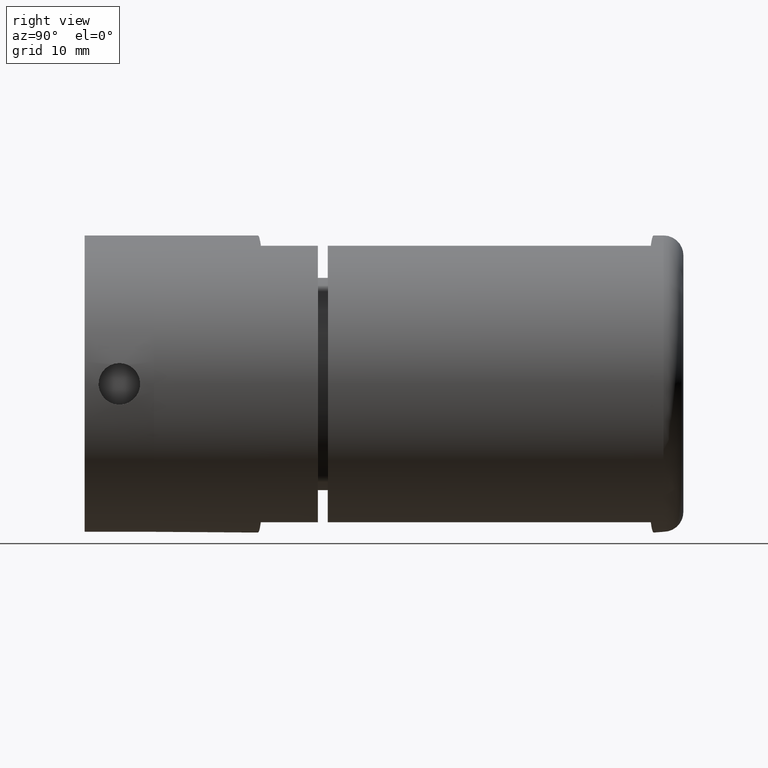
[diagram: clean part render]
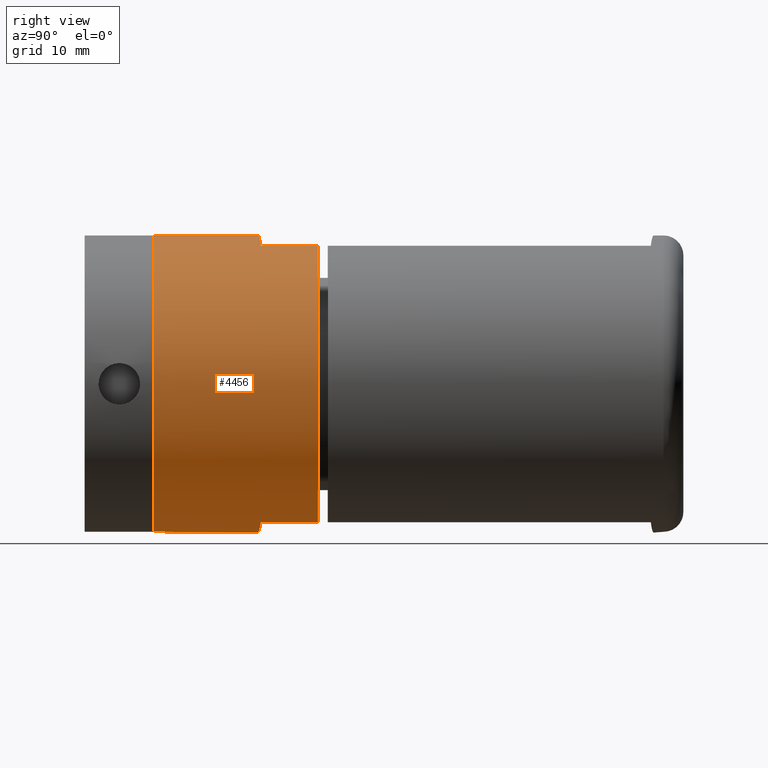
[diagram: same view with one face highlighted and labeled with its STEP entity id]
A machine part, right view. The second image highlights one B-rep face of the part: STEP entity #4456.
In plain terms, the highlighted cylindrical surface (bore or boss wall) has radius 15 mm, axis along (0, 1, -0).
Its self-contained STEP definition (entity closure, byte-faithful):
#646 = CARTESIAN_POINT ( 'NONE',  ( 5.500000000000000900, 16.55000000000000100, 13.95528573695286100 ) ) ;
#855 = DIRECTION ( 'NONE',  ( 0.0000000000000000000, 1.000000000000000000, 0.0000000000000000000 ) ) ;
#1032 = VERTEX_POINT ( 'NONE', #16412 ) ;
#1037 = CARTESIAN_POINT ( 'NONE',  ( -5.500000000000000000, 0.0000000000000000000, -13.95528573695286100 ) ) ;
#1631 = CARTESIAN_POINT ( 'NONE',  ( -5.500000000000000000, 0.0000000000000000000, 13.95528573695286100 ) ) ;
#1642 = VECTOR ( 'NONE', #3507, 1000.000000000000000 ) ;
#1833 = CARTESIAN_POINT ( 'NONE',  ( 5.500000000000000900, 5.761757213943252700, -13.95528573695286100 ) ) ;
#1893 = ORIENTED_EDGE ( 'NONE', *, *, #13645, .T. ) ;
#2259 = ORIENTED_EDGE ( 'NONE', *, *, #7790, .T. ) ;
#2635 = AXIS2_PLACEMENT_3D ( 'NONE', #5276, #5396, #10754 ) ;
#2788 = CARTESIAN_POINT ( 'NONE',  ( 3.743284001891575000, 5.853822798235113600, 14.64763544384650400 ) ) ;
#2898 = CARTESIAN_POINT ( 'NONE',  ( -5.500000000000000900, 5.761757213943252700, -13.95528573695286700 ) ) ;
#2977 = DIRECTION ( 'NONE',  ( 0.0000000000000000000, 1.000000000000000000, 0.0000000000000000000 ) ) ;
#3180 = ORIENTED_EDGE ( 'NONE', *, *, #14249, .T. ) ;
#3210 = VERTEX_POINT ( 'NONE', #9183 ) ;
#3251 = CARTESIAN_POINT ( 'NONE',  ( -5.500000000000000900, 5.761757213943252700, 13.95528573695285800 ) ) ;
#3507 = DIRECTION ( 'NONE',  ( -0.0000000000000000000, -1.000000000000000000, -0.0000000000000000000 ) ) ;
#3604 = LINE ( 'NONE', #8059, #13000 ) ;
#3736 = LINE ( 'NONE', #646, #1642 ) ;
#4108 = FACE_OUTER_BOUND ( 'NONE', #16202, .T. ) ;
#4197 = EDGE_CURVE ( 'NONE', #15270, #4609, #6443, .T. ) ;
#4323 = CIRCLE ( 'NONE', #15101, 15.00000000000000000 ) ;
#4330 = CARTESIAN_POINT ( 'NONE',  ( 0.0000000000000000000, 6.050000000000001600, -15.00000000000000000 ) ) ;
#4456 = ADVANCED_FACE ( 'NONE', ( #10578, #4108 ), #14355, .T. ) ;
#4472 = CARTESIAN_POINT ( 'NONE',  ( -5.500000000000000900, 5.761757213943252700, 13.95528573695285800 ) ) ;
#4609 = VERTEX_POINT ( 'NONE', #1037 ) ;
#4839 = DIRECTION ( 'NONE',  ( 0.0000000000000000000, 0.0000000000000000000, -1.000000000000000000 ) ) ;
#5146 = EDGE_CURVE ( 'NONE', #5657, #16928, #14291, .T. ) ;
#5276 = CARTESIAN_POINT ( 'NONE',  ( 0.0000000000000000000, 0.0000000000000000000, 0.0000000000000000000 ) ) ;
#5396 = DIRECTION ( 'NONE',  ( 0.0000000000000000000, 1.000000000000000000, 0.0000000000000000000 ) ) ;
#5657 = VERTEX_POINT ( 'NONE', #8538 ) ;
#5703 = CARTESIAN_POINT ( 'NONE',  ( -1.888226473346291700, 5.951042243748466000, -15.00000000000000000 ) ) ;
#6159 =( BOUNDED_CURVE ( )  B_SPLINE_CURVE ( 3, ( #3251, #11243, #7429, #8761 ),
 .UNSPECIFIED., .F., .F. ) 
 B_SPLINE_CURVE_WITH_KNOTS ( ( 4, 4 ),
 ( 1.195372718813857000, 1.570796326794896600 ),
 .UNSPECIFIED. ) 
 CURVE ( )  GEOMETRIC_REPRESENTATION_ITEM ( )  RATIONAL_B_SPLINE_CURVE ( ( 1.000000000000000000, 0.9882892067347445200, 0.9882892067347445200, 1.000000000000000000 ) ) 
 REPRESENTATION_ITEM ( '' )  );
#6322 = CARTESIAN_POINT ( 'NONE',  ( 0.0000000000000000000, 16.55000000000000100, 15.00000000000000000 ) ) ;
#6351 = ORIENTED_EDGE ( 'NONE', *, *, #10723, .T. ) ;
#6443 = LINE ( 'NONE', #11396, #13113 ) ;
#6641 = ORIENTED_EDGE ( 'NONE', *, *, #5146, .T. ) ;
#7034 = EDGE_CURVE ( 'NONE', #15697, #15697, #12894, .T. ) ;
#7226 = CARTESIAN_POINT ( 'NONE',  ( 5.500000000000000900, 5.761757213943252700, 13.95528573695286100 ) ) ;
#7239 = CARTESIAN_POINT ( 'NONE',  ( 3.743284001891578900, 5.853822798235113600, -14.64763544384650200 ) ) ;
#7331 = ORIENTED_EDGE ( 'NONE', *, *, #7034, .F. ) ;
#7429 = CARTESIAN_POINT ( 'NONE',  ( -1.888226473346296100, 5.951042243748466000, 15.00000000000000000 ) ) ;
#7464 =( BOUNDED_CURVE ( )  B_SPLINE_CURVE ( 3, ( #1833, #7239, #15004, #11011 ),
 .UNSPECIFIED., .F., .F. ) 
 B_SPLINE_CURVE_WITH_KNOTS ( ( 4, 4 ),
 ( 1.195372718813857200, 1.570796326794896600 ),
 .UNSPECIFIED. ) 
 CURVE ( )  GEOMETRIC_REPRESENTATION_ITEM ( )  RATIONAL_B_SPLINE_CURVE ( ( 1.000000000000000000, 0.9882892067347445200, 0.9882892067347445200, 1.000000000000000000 ) ) 
 REPRESENTATION_ITEM ( '' )  );
#7707 = CARTESIAN_POINT ( 'NONE',  ( 0.0000000000000000000, 16.55000000000000100, 0.0000000000000000000 ) ) ;
#7790 = EDGE_CURVE ( 'NONE', #1032, #15270, #16175, .T. ) ;
#7809 = ORIENTED_EDGE ( 'NONE', *, *, #15415, .T. ) ;
#8059 = CARTESIAN_POINT ( 'NONE',  ( -5.500000000000000900, 16.55000000000000100, 13.95528573695286100 ) ) ;
#8538 = CARTESIAN_POINT ( 'NONE',  ( 0.0000000000000000000, 6.050000000000001600, 15.00000000000000000 ) ) ;
#8761 = CARTESIAN_POINT ( 'NONE',  ( 0.0000000000000000000, 6.050000000000001600, 15.00000000000000000 ) ) ;
#8768 = VECTOR ( 'NONE', #15411, 1000.000000000000000 ) ;
#9042 = DIRECTION ( 'NONE',  ( 0.0000000000000000000, 0.0000000000000000000, 1.000000000000000000 ) ) ;
#9183 = CARTESIAN_POINT ( 'NONE',  ( 5.500000000000000000, 0.0000000000000000000, 13.95528573695286100 ) ) ;
#9309 = ORIENTED_EDGE ( 'NONE', *, *, #13571, .T. ) ;
#9378 = CARTESIAN_POINT ( 'NONE',  ( 1.888226473346291700, 5.951042243748466000, 15.00000000000000000 ) ) ;
#9436 = CARTESIAN_POINT ( 'NONE',  ( 0.0000000000000000000, 6.050000000000001600, 15.00000000000000000 ) ) ;
#9888 = AXIS2_PLACEMENT_3D ( 'NONE', #7707, #17033, #9042 ) ;
#10089 = CARTESIAN_POINT ( 'NONE',  ( 0.0000000000000000000, 16.55000000000000100, 0.0000000000000000000 ) ) ;
#10313 = VERTEX_POINT ( 'NONE', #12501 ) ;
#10469 = VERTEX_POINT ( 'NONE', #11488 ) ;
#10578 = FACE_OUTER_BOUND ( 'NONE', #11759, .T. ) ;
#10673 = AXIS2_PLACEMENT_3D ( 'NONE', #10089, #15489, #4839 ) ;
#10723 = EDGE_CURVE ( 'NONE', #12194, #5657, #6159, .T. ) ;
#10754 = DIRECTION ( 'NONE',  ( 0.0000000000000000000, 0.0000000000000000000, 1.000000000000000000 ) ) ;
#10851 = LINE ( 'NONE', #11426, #8768 ) ;
#11011 = CARTESIAN_POINT ( 'NONE',  ( 0.0000000000000000000, 6.050000000000001600, -15.00000000000000000 ) ) ;
#11243 = CARTESIAN_POINT ( 'NONE',  ( -3.743284001891579400, 5.853822798235114500, 14.64763544384650400 ) ) ;
#11336 = DIRECTION ( 'NONE',  ( -0.0000000000000000000, -1.000000000000000000, -0.0000000000000000000 ) ) ;
#11396 = CARTESIAN_POINT ( 'NONE',  ( -5.500000000000000900, 16.55000000000000100, -13.95528573695286100 ) ) ;
#11426 = CARTESIAN_POINT ( 'NONE',  ( 5.500000000000000900, 16.55000000000000100, -13.95528573695286100 ) ) ;
#11488 = CARTESIAN_POINT ( 'NONE',  ( 5.500000000000000900, 5.761757213943252700, -13.95528573695286100 ) ) ;
#11636 = ORIENTED_EDGE ( 'NONE', *, *, #13206, .T. ) ;
#11759 = EDGE_LOOP ( 'NONE', ( #7331 ) ) ;
#12089 = VERTEX_POINT ( 'NONE', #1631 ) ;
#12194 = VERTEX_POINT ( 'NONE', #4472 ) ;
#12501 = CARTESIAN_POINT ( 'NONE',  ( 5.500000000000000000, 0.0000000000000000000, -13.95528573695286100 ) ) ;
#12894 = CIRCLE ( 'NONE', #9888, 15.00000000000000000 ) ;
#13000 = VECTOR ( 'NONE', #2977, 1000.000000000000000 ) ;
#13113 = VECTOR ( 'NONE', #11336, 1000.000000000000000 ) ;
#13206 = EDGE_CURVE ( 'NONE', #16928, #3210, #3736, .T. ) ;
#13521 = CARTESIAN_POINT ( 'NONE',  ( -3.743284001891575000, 5.853822798235113600, -14.64763544384650400 ) ) ;
#13571 = EDGE_CURVE ( 'NONE', #10313, #10469, #10851, .T. ) ;
#13645 = EDGE_CURVE ( 'NONE', #3210, #10313, #14396, .T. ) ;
#14249 = EDGE_CURVE ( 'NONE', #10469, #1032, #7464, .T. ) ;
#14288 = EDGE_CURVE ( 'NONE', #4609, #12089, #4323, .T. ) ;
#14291 =( BOUNDED_CURVE ( )  B_SPLINE_CURVE ( 3, ( #9436, #9378, #2788, #14416 ),
 .UNSPECIFIED., .F., .F. ) 
 B_SPLINE_CURVE_WITH_KNOTS ( ( 4, 4 ),
 ( 4.712388980384689700, 5.087812588365729000 ),
 .UNSPECIFIED. ) 
 CURVE ( )  GEOMETRIC_REPRESENTATION_ITEM ( )  RATIONAL_B_SPLINE_CURVE ( ( 1.000000000000000000, 0.9882892067347445200, 0.9882892067347445200, 1.000000000000000000 ) ) 
 REPRESENTATION_ITEM ( '' )  );
#14355 = CYLINDRICAL_SURFACE ( 'NONE', #10673, 15.00000000000000000 ) ;
#14396 = CIRCLE ( 'NONE', #2635, 15.00000000000000000 ) ;
#14416 = CARTESIAN_POINT ( 'NONE',  ( 5.500000000000000900, 5.761757213943252700, 13.95528573695286100 ) ) ;
#14923 = ORIENTED_EDGE ( 'NONE', *, *, #14288, .T. ) ;
#15004 = CARTESIAN_POINT ( 'NONE',  ( 1.888226473346295200, 5.951042243748466000, -15.00000000000000000 ) ) ;
#15101 = AXIS2_PLACEMENT_3D ( 'NONE', #16785, #855, #15526 ) ;
#15270 = VERTEX_POINT ( 'NONE', #15654 ) ;
#15411 = DIRECTION ( 'NONE',  ( 0.0000000000000000000, 1.000000000000000000, 0.0000000000000000000 ) ) ;
#15415 = EDGE_CURVE ( 'NONE', #12089, #12194, #3604, .T. ) ;
#15489 = DIRECTION ( 'NONE',  ( -0.0000000000000000000, -1.000000000000000000, -0.0000000000000000000 ) ) ;
#15526 = DIRECTION ( 'NONE',  ( 0.0000000000000000000, 0.0000000000000000000, 1.000000000000000000 ) ) ;
#15654 = CARTESIAN_POINT ( 'NONE',  ( -5.500000000000000900, 5.761757213943252700, -13.95528573695286700 ) ) ;
#15697 = VERTEX_POINT ( 'NONE', #6322 ) ;
#16175 =( BOUNDED_CURVE ( )  B_SPLINE_CURVE ( 3, ( #4330, #5703, #13521, #2898 ),
 .UNSPECIFIED., .F., .F. ) 
 B_SPLINE_CURVE_WITH_KNOTS ( ( 4, 4 ),
 ( 4.712388980384689700, 5.087812588365729000 ),
 .UNSPECIFIED. ) 
 CURVE ( )  GEOMETRIC_REPRESENTATION_ITEM ( )  RATIONAL_B_SPLINE_CURVE ( ( 1.000000000000000000, 0.9882892067347445200, 0.9882892067347445200, 1.000000000000000000 ) ) 
 REPRESENTATION_ITEM ( '' )  );
#16202 = EDGE_LOOP ( 'NONE', ( #14923, #7809, #6351, #6641, #11636, #1893, #9309, #3180, #2259, #16519 ) ) ;
#16412 = CARTESIAN_POINT ( 'NONE',  ( 0.0000000000000000000, 6.050000000000001600, -15.00000000000000000 ) ) ;
#16519 = ORIENTED_EDGE ( 'NONE', *, *, #4197, .T. ) ;
#16785 = CARTESIAN_POINT ( 'NONE',  ( 0.0000000000000000000, 0.0000000000000000000, 0.0000000000000000000 ) ) ;
#16928 = VERTEX_POINT ( 'NONE', #7226 ) ;
#17033 = DIRECTION ( 'NONE',  ( 0.0000000000000000000, 1.000000000000000000, 0.0000000000000000000 ) ) ;